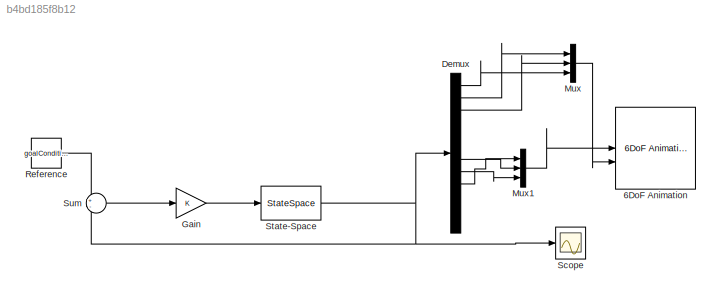
MODEL slx_b4bd185f8b12
KIND model
CONFIG AbsTol = auto
CONFIG EnableMultiTasking = off
CONFIG FixedStep = auto
CONFIG MaxStep = auto
CONFIG MinStep = auto
CONFIG RelTol = 1e-3
CONFIG SampleTimeConstraint = Unconstrained
CONFIG SolverName = VariableStepAuto
CONFIG StartTime = 0.0
CONFIG StopTime = 30
BLOCK [Reference] 6DoF Animation  REF=aerolibanim/6DoF Animation
  SourceBlock = aerolibanim/6DoF Animation
  SourceType = 6DoF_Animation
BLOCK [Demux] Demux
  Outputs = 12
BLOCK [Gain] Gain
  Gain = K
  Multiplication = Matrix(K*u)
BLOCK [Mux] Mux
  DisplayOption = bar
  Inputs = 3
BLOCK [Mux] Mux1
  DisplayOption = bar
  Inputs = 3
BLOCK [Constant] Reference
  Value = goalConditions
BLOCK [Scope] Scope
  Floating = off
  NumInputPorts = 1
  ScopeSpecificationString = Simulink.scopes.TimeScopeBlockCfg('CurrentConfiguration', extmgr.ConfigurationSet(extmgr.Configuration('Core','General UI',true),extmgr.Configuration('Core','Source UI',true),extmgr.Configuration('Sources','WiredSimulink',true),extmgr.Configuration('Visuals','Time Domain',true,'SerializedDisplays',{struct('MinYLimReal','-1.63169','MaxYLimReal','0.78016','YLabelReal','','MinYLimMag','0.00000','MaxY...<+1653ch>
BLOCK [StateSpace] State-Space
  A = A
  B = B
  C = C
  D = D
  InitialCondition = initialConditions
BLOCK [Sum] Sum
  Inputs = +-
LINE Demux:1 -> Mux:3
LINE Demux:2 -> Mux:1
LINE Demux:3 -> Mux:2
LINE Demux:7 -> Mux1:2
LINE Demux:8 -> Mux1:3
LINE Demux:9 -> Mux1:1
LINE Gain:1 -> State-Space:1
LINE Mux1:1 -> 6DoF Animation:1
LINE Mux:1 -> 6DoF Animation:2
LINE Reference:1 -> Sum:1
NET State-Space:1 -> Demux:1, Scope:1, Sum:2
LINE Sum:1 -> Gain:1
note: NET lines group one-source signal fan-out (src -> all destinations, sorted); 1:1 wires keep LINE
